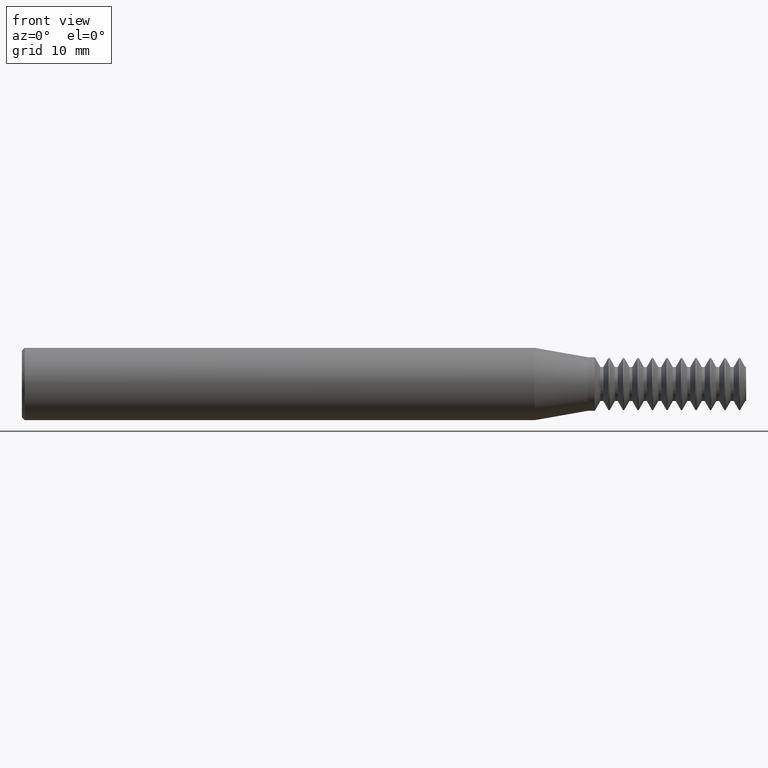
[diagram: clean part render]
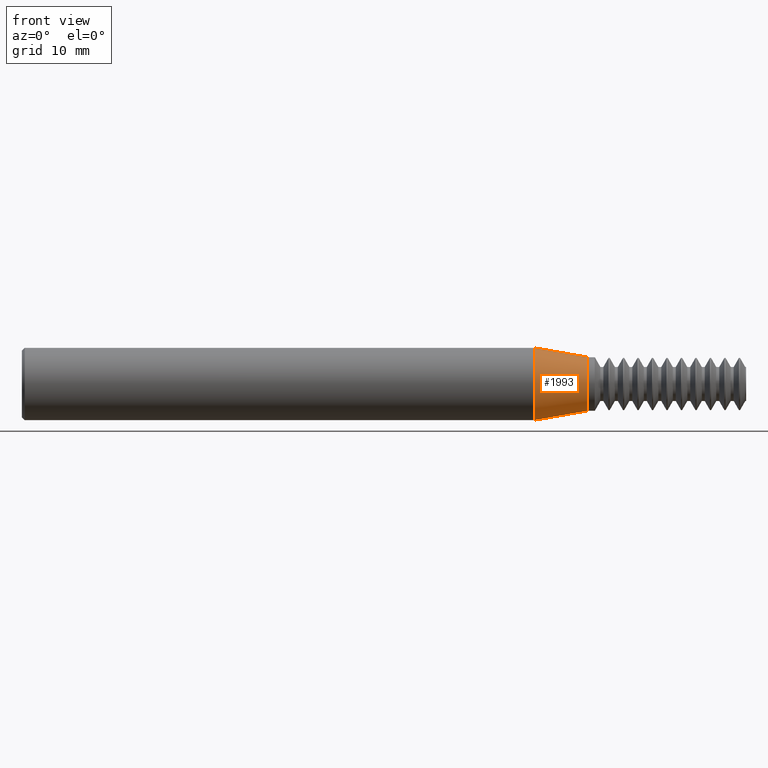
[diagram: same view with one face highlighted and labeled with its STEP entity id]
A machine part, front view. The second image highlights one B-rep face of the part: STEP entity #1993.
In plain terms, the highlighted conical surface has half-angle 10 deg.
Its self-contained STEP definition (entity closure, byte-faithful):
#46 = CARTESIAN_POINT ( 'NONE',  ( 1.770000000000000018, 1.528971528735470422E-17, 0.1248500000000000026 ) ) ;
#53 = VERTEX_POINT ( 'NONE', #2231 ) ;
#62 = DIRECTION ( 'NONE',  ( 0.000000000000000000, 0.000000000000000000, 1.000000000000000000 ) ) ;
#81 = DIRECTION ( 'NONE',  ( -0.9848077530122077983, 2.126576849575776537E-17, -0.1736481776669307753 ) ) ;
#122 = CIRCLE ( 'NONE', #1799, 0.1248500000000000026 ) ;
#232 = AXIS2_PLACEMENT_3D ( 'NONE', #337, #311, #2379 ) ;
#239 = FACE_OUTER_BOUND ( 'NONE', #2408, .T. ) ;
#240 = ORIENTED_EDGE ( 'NONE', *, *, #700, .F. ) ;
#263 = CARTESIAN_POINT ( 'NONE',  ( 1.953465966864632364, 1.132798289211301828E-17, -0.09249999999999999889 ) ) ;
#289 = CARTESIAN_POINT ( 'NONE',  ( 1.770000000000000018, 0.000000000000000000, -0.1248500000000000026 ) ) ;
#311 = DIRECTION ( 'NONE',  ( 1.000000000000000000, -0.000000000000000000, -0.000000000000000000 ) ) ;
#318 = EDGE_CURVE ( 'NONE', #912, #616, #1810, .T. ) ;
#335 = CARTESIAN_POINT ( 'NONE',  ( 1.953465966864632364, 0.000000000000000000, 0.09249999999999999889 ) ) ;
#337 = CARTESIAN_POINT ( 'NONE',  ( 1.953465966864632364, 0.000000000000000000, 0.000000000000000000 ) ) ;
#394 = EDGE_CURVE ( 'NONE', #912, #53, #2029, .T. ) ;
#395 = VECTOR ( 'NONE', #81, 39.37007874015748854 ) ;
#413 = DIRECTION ( 'NONE',  ( 0.000000000000000000, 0.000000000000000000, -1.000000000000000000 ) ) ;
#522 = ORIENTED_EDGE ( 'NONE', *, *, #318, .T. ) ;
#572 = EDGE_CURVE ( 'NONE', #616, #842, #122, .T. ) ;
#616 = VERTEX_POINT ( 'NONE', #46 ) ;
#700 = EDGE_CURVE ( 'NONE', #53, #842, #1938, .T. ) ;
#796 = CARTESIAN_POINT ( 'NONE',  ( 1.953465966864632364, 0.000000000000000000, 0.000000000000000000 ) ) ;
#842 = VERTEX_POINT ( 'NONE', #289 ) ;
#912 = VERTEX_POINT ( 'NONE', #335 ) ;
#1034 = CARTESIAN_POINT ( 'NONE',  ( 1.953465966864632364, 0.000000000000000000, 0.09249999999999999889 ) ) ;
#1228 = ORIENTED_EDGE ( 'NONE', *, *, #394, .F. ) ;
#1242 = DIRECTION ( 'NONE',  ( -0.9848077530122077983, 0.000000000000000000, 0.1736481776669307753 ) ) ;
#1400 = ORIENTED_EDGE ( 'NONE', *, *, #572, .T. ) ;
#1548 = CARTESIAN_POINT ( 'NONE',  ( 1.770000000000000018, 0.000000000000000000, 0.000000000000000000 ) ) ;
#1745 = DIRECTION ( 'NONE',  ( -1.000000000000000000, 0.000000000000000000, 0.000000000000000000 ) ) ;
#1799 = AXIS2_PLACEMENT_3D ( 'NONE', #1548, #2279, #413 ) ;
#1810 = LINE ( 'NONE', #1034, #1954 ) ;
#1887 = CONICAL_SURFACE ( 'NONE', #2086, 0.09249999999999999889, 0.1745329251994334196 ) ;
#1938 = LINE ( 'NONE', #263, #395 ) ;
#1954 = VECTOR ( 'NONE', #1242, 39.37007874015748854 ) ;
#1993 = ADVANCED_FACE ( 'NONE', ( #239 ), #1887, .T. ) ;
#2029 = CIRCLE ( 'NONE', #232, 0.09249999999999999889 ) ;
#2086 = AXIS2_PLACEMENT_3D ( 'NONE', #796, #1745, #62 ) ;
#2231 = CARTESIAN_POINT ( 'NONE',  ( 1.953465966864632364, 1.330884908973386202E-17, -0.09249999999999999889 ) ) ;
#2279 = DIRECTION ( 'NONE',  ( 1.000000000000000000, -0.000000000000000000, -0.000000000000000000 ) ) ;
#2379 = DIRECTION ( 'NONE',  ( 0.000000000000000000, 0.000000000000000000, -1.000000000000000000 ) ) ;
#2408 = EDGE_LOOP ( 'NONE', ( #240, #1228, #522, #1400 ) ) ;